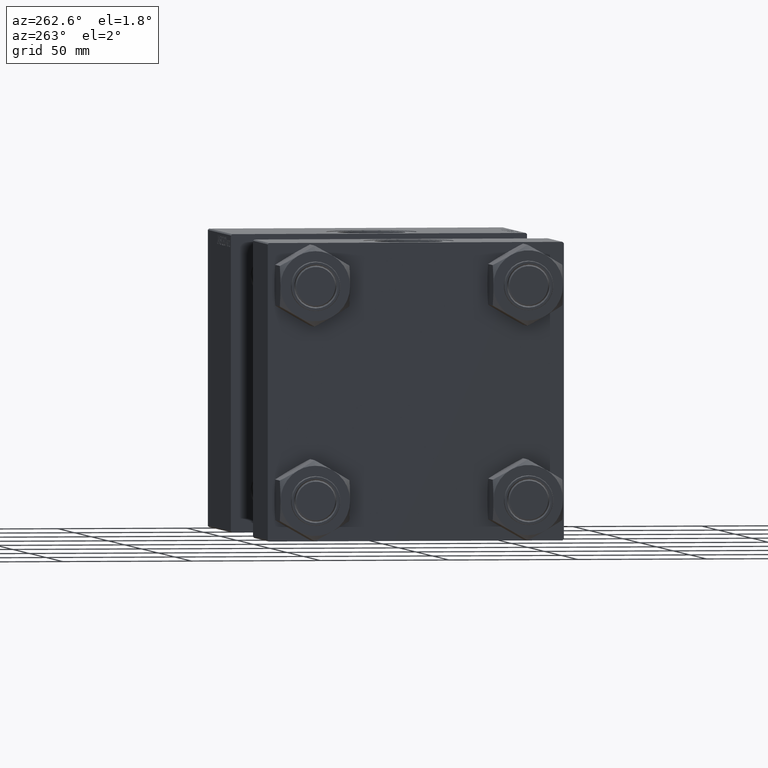
[diagram: clean part render]
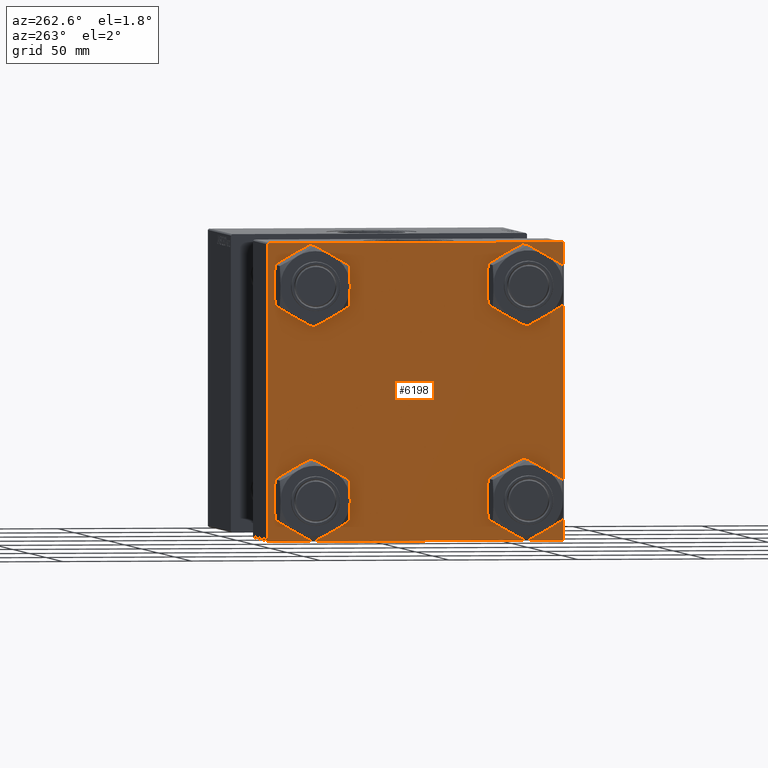
[diagram: same view with one face highlighted and labeled with its STEP entity id]
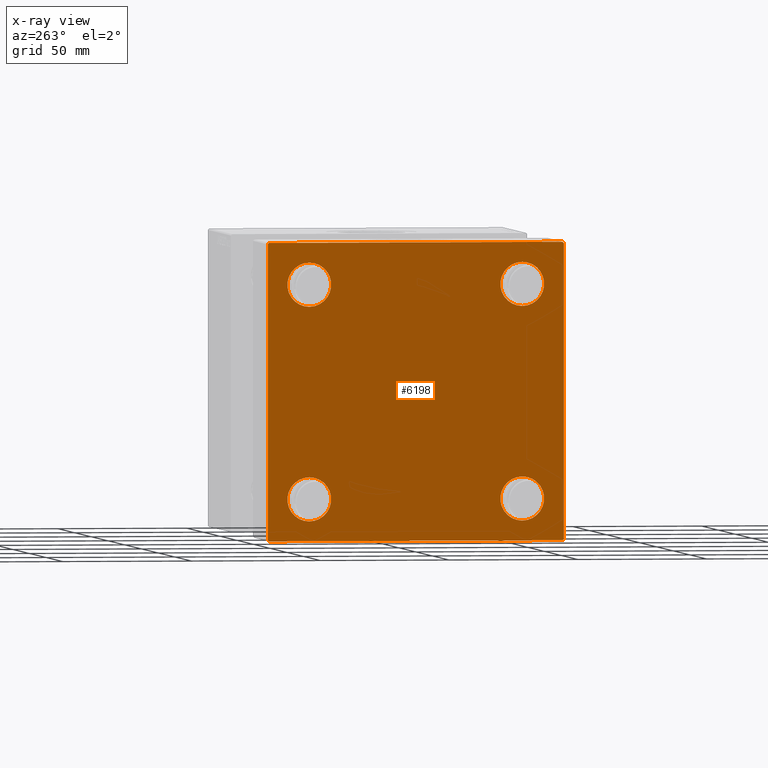
[diagram: x-ray of the same camera — body ghosted, the highlighted face saturated]
A machine part, auxiliary view. The second image highlights one B-rep face of the part: STEP entity #6198.
The next image is the same camera in x-ray: the body ghosted, the highlighted face saturated — about 0% of this face is hidden behind the body in this view.
In plain terms, the highlighted planar face has unit normal (-1, 0, 0).
Its self-contained STEP definition (entity closure, byte-faithful):
#395 = VERTEX_POINT ( 'NONE', #11080 ) ;
#520 = DIRECTION ( 'NONE',  ( 0.000000000000000000, 0.000000000000000000, 1.000000000000000000 ) ) ;
#1265 = VERTEX_POINT ( 'NONE', #42312 ) ;
#1686 = CARTESIAN_POINT ( 'NONE',  ( 0.000000000000000000, 0.000000000000000000, 0.000000000000000000 ) ) ;
#1770 = DIRECTION ( 'NONE',  ( 0.000000000000000000, -0.7071067811865474617, 0.7071067811865474617 ) ) ;
#1772 = CARTESIAN_POINT ( 'NONE',  ( 0.000000000000000000, -57.50000000000000711, -57.00000000000000711 ) ) ;
#2196 = CIRCLE ( 'NONE', #30807, 8.499999999999992895 ) ;
#2443 = CARTESIAN_POINT ( 'NONE',  ( -0.000000000000000000, -57.25000000000081712, 57.24999999999922551 ) ) ;
#2686 = LINE ( 'NONE', #2443, #27060 ) ;
#3089 = ORIENTED_EDGE ( 'NONE', *, *, #9549, .T. ) ;
#3512 = EDGE_CURVE ( 'NONE', #11670, #33925, #2686, .T. ) ;
#3749 = VERTEX_POINT ( 'NONE', #14400 ) ;
#3962 = DIRECTION ( 'NONE',  ( 1.000000000000000000, -0.000000000000000000, 0.000000000000000000 ) ) ;
#4096 = DIRECTION ( 'NONE',  ( 0.000000000000000000, 0.000000000000000000, -1.000000000000000000 ) ) ;
#4611 = DIRECTION ( 'NONE',  ( 1.000000000000000000, -0.000000000000000000, 0.000000000000000000 ) ) ;
#4900 = EDGE_CURVE ( 'NONE', #19385, #36830, #13170, .T. ) ;
#5019 = FACE_BOUND ( 'NONE', #9737, .T. ) ;
#5086 = AXIS2_PLACEMENT_3D ( 'NONE', #1686, #5773, #12965 ) ;
#5327 = DIRECTION ( 'NONE',  ( 1.000000000000000000, -0.000000000000000000, 0.000000000000000000 ) ) ;
#5773 = DIRECTION ( 'NONE',  ( -1.000000000000000000, 0.000000000000000000, -0.000000000000000000 ) ) ;
#6198 = ADVANCED_FACE ( 'NONE', ( #5019, #36763, #48806, #25247, #28563 ), #13717, .T. ) ;
#6282 = ORIENTED_EDGE ( 'NONE', *, *, #22691, .T. ) ;
#6760 = LINE ( 'NONE', #41585, #27524 ) ;
#7065 = DIRECTION ( 'NONE',  ( 0.000000000000000000, 0.000000000000000000, 1.000000000000000000 ) ) ;
#7151 = CARTESIAN_POINT ( 'NONE',  ( 0.000000000000000000, 41.34999999999999432, 32.85000000000000853 ) ) ;
#7311 = CARTESIAN_POINT ( 'NONE',  ( 0.000000000000000000, 57.49999999999999289, 57.50000000000000711 ) ) ;
#7760 = LINE ( 'NONE', #8700, #16309 ) ;
#8299 = VERTEX_POINT ( 'NONE', #1772 ) ;
#8521 = CARTESIAN_POINT ( 'NONE',  ( 0.000000000000000000, -41.34999999999998721, -49.85000000000000853 ) ) ;
#8700 = CARTESIAN_POINT ( 'NONE',  ( 0.000000000000000000, -57.25000000000000711, -57.25000000000000711 ) ) ;
#9549 = EDGE_CURVE ( 'NONE', #42110, #395, #43473, .T. ) ;
#9737 = EDGE_LOOP ( 'NONE', ( #39860, #3089 ) ) ;
#9922 = AXIS2_PLACEMENT_3D ( 'NONE', #32719, #5327, #33221 ) ;
#10164 = CIRCLE ( 'NONE', #50236, 8.499999999999992895 ) ;
#10382 = AXIS2_PLACEMENT_3D ( 'NONE', #25914, #45872, #33581 ) ;
#10796 = DIRECTION ( 'NONE',  ( 0.000000000000000000, 0.000000000000000000, 1.000000000000000000 ) ) ;
#11080 = CARTESIAN_POINT ( 'NONE',  ( 0.000000000000000000, -41.34999999999998721, 49.85000000000000853 ) ) ;
#11132 = CARTESIAN_POINT ( 'NONE',  ( 0.000000000000000000, -41.34999999999998721, -41.35000000000000853 ) ) ;
#11143 = EDGE_CURVE ( 'NONE', #13222, #14337, #22490, .T. ) ;
#11670 = VERTEX_POINT ( 'NONE', #20563 ) ;
#12030 = EDGE_LOOP ( 'NONE', ( #32671, #48536, #45218, #13473, #30363, #36003, #14848, #45470 ) ) ;
#12965 = DIRECTION ( 'NONE',  ( -0.000000000000000000, 0.000000000000000000, 1.000000000000000000 ) ) ;
#13170 = CIRCLE ( 'NONE', #9922, 8.499999999999992895 ) ;
#13204 = EDGE_CURVE ( 'NONE', #40237, #33925, #42382, .T. ) ;
#13222 = VERTEX_POINT ( 'NONE', #15253 ) ;
#13473 = ORIENTED_EDGE ( 'NONE', *, *, #46485, .T. ) ;
#13707 = CARTESIAN_POINT ( 'NONE',  ( 0.000000000000000000, 41.34999999999999432, -32.85000000000000853 ) ) ;
#13717 = PLANE ( 'NONE',  #5086 ) ;
#14337 = VERTEX_POINT ( 'NONE', #43920 ) ;
#14375 = CARTESIAN_POINT ( 'NONE',  ( 0.000000000000000000, 41.34999999999999432, -41.35000000000000142 ) ) ;
#14400 = CARTESIAN_POINT ( 'NONE',  ( 0.000000000000000000, -57.00000000000000711, -57.50000000000000711 ) ) ;
#14426 = CIRCLE ( 'NONE', #10382, 8.499999999999992895 ) ;
#14558 = CARTESIAN_POINT ( 'NONE',  ( 0.000000000000000000, 57.25000000000081712, -57.24999999999922551 ) ) ;
#14848 = ORIENTED_EDGE ( 'NONE', *, *, #13204, .F. ) ;
#15253 = CARTESIAN_POINT ( 'NONE',  ( 0.000000000000000000, 57.49999999999999289, -57.00000000000000711 ) ) ;
#15280 = VECTOR ( 'NONE', #26911, 1000.000000000000114 ) ;
#16309 = VECTOR ( 'NONE', #1770, 1000.000000000000114 ) ;
#16665 = EDGE_CURVE ( 'NONE', #28859, #23170, #10164, .T. ) ;
#18294 = DIRECTION ( 'NONE',  ( -0.000000000000000000, 0.7071067811865376918, 0.7071067811865573427 ) ) ;
#18677 = CIRCLE ( 'NONE', #36686, 8.499999999999992895 ) ;
#18686 = CARTESIAN_POINT ( 'NONE',  ( 0.000000000000000000, -57.50000000000000711, 57.49999999999999289 ) ) ;
#18966 = DIRECTION ( 'NONE',  ( 0.000000000000000000, -1.000000000000000000, -1.206764157201257045E-16 ) ) ;
#18973 = DIRECTION ( 'NONE',  ( 1.000000000000000000, -0.000000000000000000, 0.000000000000000000 ) ) ;
#19385 = VERTEX_POINT ( 'NONE', #22776 ) ;
#20254 = EDGE_CURVE ( 'NONE', #11670, #8299, #38909, .T. ) ;
#20563 = CARTESIAN_POINT ( 'NONE',  ( 0.000000000000000000, -57.50000000000000711, 57.00000000000000711 ) ) ;
#20824 = CIRCLE ( 'NONE', #37207, 8.499999999999992895 ) ;
#21724 = CIRCLE ( 'NONE', #33165, 8.499999999999992895 ) ;
#22229 = DIRECTION ( 'NONE',  ( 0.000000000000000000, 0.000000000000000000, 1.000000000000000000 ) ) ;
#22306 = DIRECTION ( 'NONE',  ( 1.000000000000000000, -0.000000000000000000, 0.000000000000000000 ) ) ;
#22490 = LINE ( 'NONE', #14558, #33685 ) ;
#22691 = EDGE_CURVE ( 'NONE', #42786, #44195, #2196, .T. ) ;
#22776 = CARTESIAN_POINT ( 'NONE',  ( 0.000000000000000000, 41.34999999999999432, 49.85000000000000142 ) ) ;
#23170 = VERTEX_POINT ( 'NONE', #38581 ) ;
#23462 = EDGE_LOOP ( 'NONE', ( #6282, #36019 ) ) ;
#25247 = FACE_BOUND ( 'NONE', #35649, .T. ) ;
#25376 = EDGE_CURVE ( 'NONE', #40237, #1265, #38421, .T. ) ;
#25818 = EDGE_CURVE ( 'NONE', #1265, #13222, #6760, .T. ) ;
#25913 = CARTESIAN_POINT ( 'NONE',  ( 0.000000000000000000, 41.34999999999999432, -41.35000000000000142 ) ) ;
#25914 = CARTESIAN_POINT ( 'NONE',  ( 0.000000000000000000, 41.34999999999999432, 41.35000000000000142 ) ) ;
#26118 = EDGE_CURVE ( 'NONE', #36830, #19385, #14426, .T. ) ;
#26638 = VECTOR ( 'NONE', #4096, 1000.000000000000000 ) ;
#26911 = DIRECTION ( 'NONE',  ( 0.000000000000000000, 0.7071067811865573427, -0.7071067811865376918 ) ) ;
#26949 = EDGE_CURVE ( 'NONE', #44195, #42786, #18677, .T. ) ;
#27060 = VECTOR ( 'NONE', #18294, 1000.000000000000114 ) ;
#27465 = ORIENTED_EDGE ( 'NONE', *, *, #4900, .T. ) ;
#27524 = VECTOR ( 'NONE', #45683, 1000.000000000000000 ) ;
#27817 = EDGE_CURVE ( 'NONE', #23170, #28859, #20824, .T. ) ;
#27935 = AXIS2_PLACEMENT_3D ( 'NONE', #30359, #38540, #7065 ) ;
#28321 = ORIENTED_EDGE ( 'NONE', *, *, #27817, .T. ) ;
#28563 = FACE_OUTER_BOUND ( 'NONE', #12030, .T. ) ;
#28859 = VERTEX_POINT ( 'NONE', #13707 ) ;
#30359 = CARTESIAN_POINT ( 'NONE',  ( 0.000000000000000000, -41.34999999999998721, 41.35000000000000853 ) ) ;
#30363 = ORIENTED_EDGE ( 'NONE', *, *, #20254, .F. ) ;
#30372 = EDGE_LOOP ( 'NONE', ( #36539, #28321 ) ) ;
#30807 = AXIS2_PLACEMENT_3D ( 'NONE', #11132, #3962, #42877 ) ;
#32671 = ORIENTED_EDGE ( 'NONE', *, *, #25818, .T. ) ;
#32719 = CARTESIAN_POINT ( 'NONE',  ( 0.000000000000000000, 41.34999999999999432, 41.35000000000000142 ) ) ;
#33165 = AXIS2_PLACEMENT_3D ( 'NONE', #45540, #41441, #22229 ) ;
#33221 = DIRECTION ( 'NONE',  ( 0.000000000000000000, 0.000000000000000000, 1.000000000000000000 ) ) ;
#33581 = DIRECTION ( 'NONE',  ( 0.000000000000000000, 0.000000000000000000, 1.000000000000000000 ) ) ;
#33685 = VECTOR ( 'NONE', #38113, 1000.000000000000114 ) ;
#33925 = VERTEX_POINT ( 'NONE', #41949 ) ;
#34594 = LINE ( 'NONE', #41766, #38140 ) ;
#34707 = DIRECTION ( 'NONE',  ( 0.000000000000000000, -1.000000000000000000, -1.206764157201257045E-16 ) ) ;
#35124 = EDGE_CURVE ( 'NONE', #395, #42110, #21724, .T. ) ;
#35638 = EDGE_CURVE ( 'NONE', #14337, #3749, #34594, .T. ) ;
#35649 = EDGE_LOOP ( 'NONE', ( #27465, #44700 ) ) ;
#36003 = ORIENTED_EDGE ( 'NONE', *, *, #3512, .T. ) ;
#36019 = ORIENTED_EDGE ( 'NONE', *, *, #26949, .T. ) ;
#36084 = CARTESIAN_POINT ( 'NONE',  ( 0.000000000000000000, -41.34999999999998721, 32.85000000000001563 ) ) ;
#36539 = ORIENTED_EDGE ( 'NONE', *, *, #16665, .T. ) ;
#36686 = AXIS2_PLACEMENT_3D ( 'NONE', #39173, #4611, #520 ) ;
#36763 = FACE_BOUND ( 'NONE', #23462, .T. ) ;
#36830 = VERTEX_POINT ( 'NONE', #7151 ) ;
#37207 = AXIS2_PLACEMENT_3D ( 'NONE', #25913, #18973, #10796 ) ;
#37929 = DIRECTION ( 'NONE',  ( 0.000000000000000000, 0.000000000000000000, 1.000000000000000000 ) ) ;
#38113 = DIRECTION ( 'NONE',  ( -0.000000000000000000, -0.7071067811865376918, -0.7071067811865573427 ) ) ;
#38140 = VECTOR ( 'NONE', #18966, 1000.000000000000000 ) ;
#38334 = CARTESIAN_POINT ( 'NONE',  ( 0.000000000000000000, 57.00000000000000711, 57.50000000000000711 ) ) ;
#38421 = LINE ( 'NONE', #50213, #15280 ) ;
#38540 = DIRECTION ( 'NONE',  ( 1.000000000000000000, -0.000000000000000000, 0.000000000000000000 ) ) ;
#38581 = CARTESIAN_POINT ( 'NONE',  ( 0.000000000000000000, 41.34999999999999432, -49.85000000000000142 ) ) ;
#38728 = CARTESIAN_POINT ( 'NONE',  ( 0.000000000000000000, -41.34999999999998721, -32.85000000000001563 ) ) ;
#38909 = LINE ( 'NONE', #18686, #26638 ) ;
#39173 = CARTESIAN_POINT ( 'NONE',  ( 0.000000000000000000, -41.34999999999998721, -41.35000000000000853 ) ) ;
#39860 = ORIENTED_EDGE ( 'NONE', *, *, #35124, .T. ) ;
#40237 = VERTEX_POINT ( 'NONE', #38334 ) ;
#41441 = DIRECTION ( 'NONE',  ( 1.000000000000000000, -0.000000000000000000, 0.000000000000000000 ) ) ;
#41585 = CARTESIAN_POINT ( 'NONE',  ( 0.000000000000000000, 57.49999999999999289, 57.50000000000000711 ) ) ;
#41766 = CARTESIAN_POINT ( 'NONE',  ( 0.000000000000000000, 57.49999999999999289, -57.49999999999999289 ) ) ;
#41949 = CARTESIAN_POINT ( 'NONE',  ( 0.000000000000000000, -57.00000000000003553, 57.49999999999999289 ) ) ;
#42110 = VERTEX_POINT ( 'NONE', #36084 ) ;
#42312 = CARTESIAN_POINT ( 'NONE',  ( 0.000000000000000000, 57.49999999999999289, 57.00000000000003553 ) ) ;
#42382 = LINE ( 'NONE', #7311, #44383 ) ;
#42786 = VERTEX_POINT ( 'NONE', #38728 ) ;
#42877 = DIRECTION ( 'NONE',  ( 0.000000000000000000, 0.000000000000000000, 1.000000000000000000 ) ) ;
#43473 = CIRCLE ( 'NONE', #27935, 8.499999999999992895 ) ;
#43920 = CARTESIAN_POINT ( 'NONE',  ( 0.000000000000000000, 57.00000000000002132, -57.49999999999999289 ) ) ;
#44195 = VERTEX_POINT ( 'NONE', #8521 ) ;
#44383 = VECTOR ( 'NONE', #34707, 1000.000000000000000 ) ;
#44700 = ORIENTED_EDGE ( 'NONE', *, *, #26118, .T. ) ;
#45218 = ORIENTED_EDGE ( 'NONE', *, *, #35638, .T. ) ;
#45470 = ORIENTED_EDGE ( 'NONE', *, *, #25376, .T. ) ;
#45540 = CARTESIAN_POINT ( 'NONE',  ( 0.000000000000000000, -41.34999999999998721, 41.35000000000000853 ) ) ;
#45683 = DIRECTION ( 'NONE',  ( 0.000000000000000000, 0.000000000000000000, -1.000000000000000000 ) ) ;
#45872 = DIRECTION ( 'NONE',  ( 1.000000000000000000, -0.000000000000000000, 0.000000000000000000 ) ) ;
#46485 = EDGE_CURVE ( 'NONE', #3749, #8299, #7760, .T. ) ;
#48536 = ORIENTED_EDGE ( 'NONE', *, *, #11143, .T. ) ;
#48806 = FACE_BOUND ( 'NONE', #30372, .T. ) ;
#50213 = CARTESIAN_POINT ( 'NONE',  ( 0.000000000000000000, 57.24999999999922551, 57.25000000000081712 ) ) ;
#50236 = AXIS2_PLACEMENT_3D ( 'NONE', #14375, #22306, #37929 ) ;